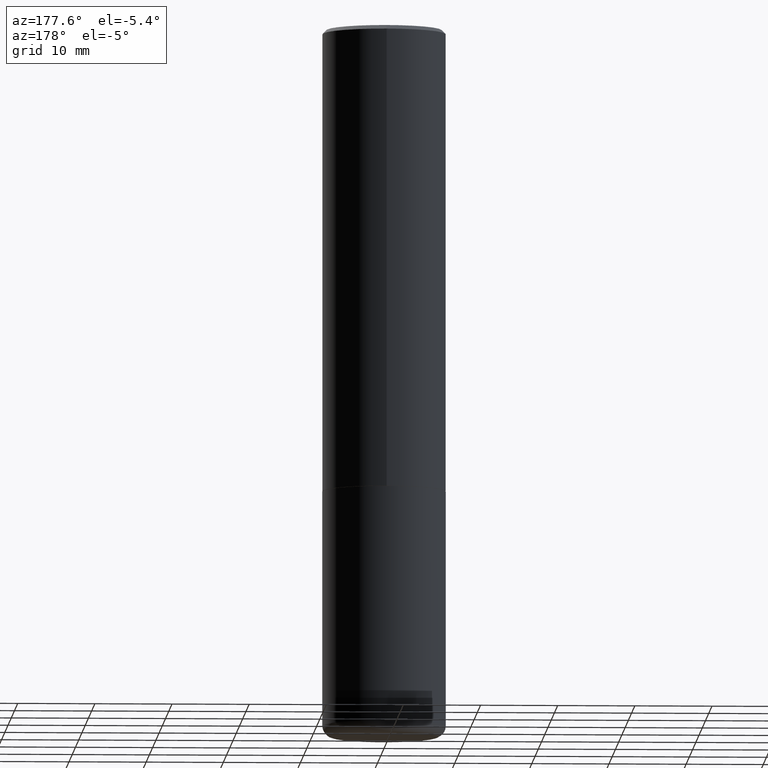
[diagram: clean part render]
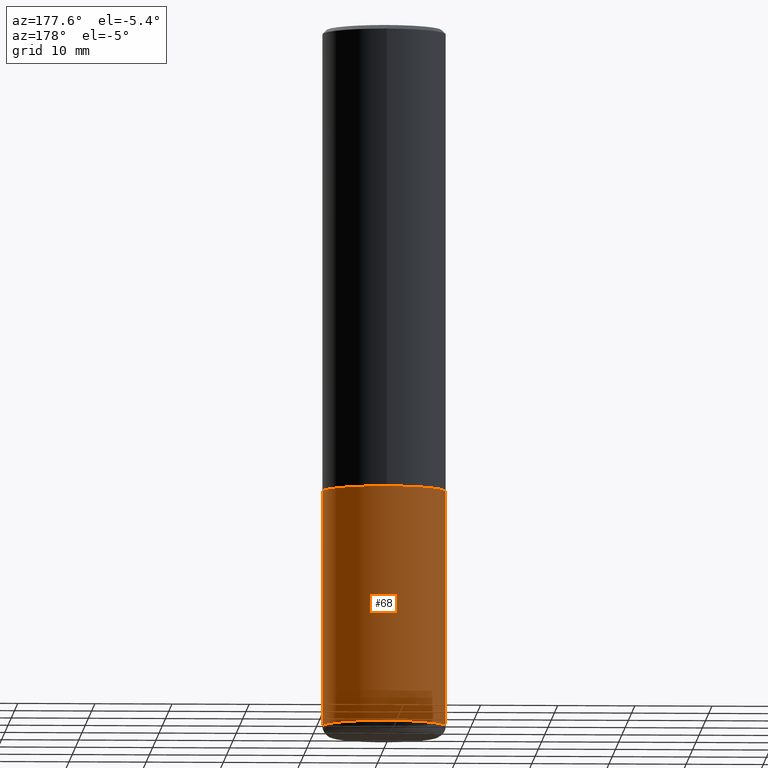
[diagram: same view with one face highlighted and labeled with its STEP entity id]
A machine part, auxiliary view. The second image highlights one B-rep face of the part: STEP entity #68.
In plain terms, the highlighted cylindrical surface (partial cylindrical patch) has radius 7.9997 mm, axis along (-0, 0, 1).
Its self-contained STEP definition (entity closure, byte-faithful):
#8 = CARTESIAN_POINT ( 'NONE',  ( -0.3149500000000000077, 2.237854346276435590E-15, -1.549218606675782676E-29 ) ) ;
#16 = CYLINDRICAL_SURFACE ( 'NONE', #258, 0.3149500000000000077 ) ;
#26 = DIRECTION ( 'NONE',  ( -2.445468806185136877E-29, 3.491481338843145188E-15, 1.000000000000000000 ) ) ;
#32 = DIRECTION ( 'NONE',  ( 1.000000000000000000, -6.982962677686266711E-15, 0.000000000000000000 ) ) ;
#43 = LINE ( 'NONE', #8, #119 ) ;
#60 = VECTOR ( 'NONE', #26, 39.37007874015748143 ) ;
#61 = ORIENTED_EDGE ( 'NONE', *, *, #147, .T. ) ;
#62 = DIRECTION ( 'NONE',  ( -2.445468806185136597E-29, 3.491481338843145583E-15, 1.000000000000000000 ) ) ;
#68 = ADVANCED_FACE ( 'NONE', ( #233 ), #16, .T. ) ;
#97 = EDGE_LOOP ( 'NONE', ( #61, #345, #199, #168 ) ) ;
#111 = CARTESIAN_POINT ( 'NONE',  ( 0.000000000000000000, 0.000000000000000000, 0.000000000000000000 ) ) ;
#112 = CIRCLE ( 'NONE', #141, 0.3149500000000000632 ) ;
#116 = CARTESIAN_POINT ( 'NONE',  ( -0.3149500000000000077, -1.020194451588780718E-14, -3.562899999999999956 ) ) ;
#118 = CARTESIAN_POINT ( 'NONE',  ( 8.712960809557023143E-29, -1.243979886216424317E-14, -3.562899999999999956 ) ) ;
#119 = VECTOR ( 'NONE', #178, 39.37007874015748143 ) ;
#121 = CIRCLE ( 'NONE', #337, 0.3149500000000000077 ) ;
#122 = VERTEX_POINT ( 'NONE', #116 ) ;
#126 = CARTESIAN_POINT ( 'NONE',  ( 5.776686413970529753E-29, -8.247577218615278049E-15, -2.362199999999999633 ) ) ;
#141 = AXIS2_PLACEMENT_3D ( 'NONE', #118, #153, #334 ) ;
#144 = CARTESIAN_POINT ( 'NONE',  ( 0.3149500000000000077, -1.463908295750153462E-14, -3.562899999999999956 ) ) ;
#147 = EDGE_CURVE ( 'NONE', #192, #122, #112, .T. ) ;
#149 = EDGE_CURVE ( 'NONE', #122, #213, #43, .T. ) ;
#153 = DIRECTION ( 'NONE',  ( -2.445468806185136597E-29, 3.491481338843145583E-15, 1.000000000000000000 ) ) ;
#168 = ORIENTED_EDGE ( 'NONE', *, *, #411, .F. ) ;
#178 = DIRECTION ( 'NONE',  ( -2.445468806185136877E-29, 3.491481338843145188E-15, 1.000000000000000000 ) ) ;
#192 = VERTEX_POINT ( 'NONE', #144 ) ;
#199 = ORIENTED_EDGE ( 'NONE', *, *, #321, .F. ) ;
#213 = VERTEX_POINT ( 'NONE', #232 ) ;
#232 = CARTESIAN_POINT ( 'NONE',  ( -0.3149500000000000077, -8.105833694113324624E-15, -2.362199999999999633 ) ) ;
#233 = FACE_OUTER_BOUND ( 'NONE', #97, .T. ) ;
#237 = DIRECTION ( 'NONE',  ( 1.000000000000000000, -6.982962677686266711E-15, 4.876176775795936353E-29 ) ) ;
#258 = AXIS2_PLACEMENT_3D ( 'NONE', #111, #366, #237 ) ;
#286 = CARTESIAN_POINT ( 'NONE',  ( 0.3149500000000000077, -2.199284095337289871E-15, 1.535751875536930130E-29 ) ) ;
#319 = CARTESIAN_POINT ( 'NONE',  ( 0.3149500000000000077, -1.044686131395256792E-14, -2.362199999999999633 ) ) ;
#321 = EDGE_CURVE ( 'NONE', #415, #213, #121, .T. ) ;
#327 = LINE ( 'NONE', #286, #60 ) ;
#334 = DIRECTION ( 'NONE',  ( 1.000000000000000000, -6.982962677686268288E-15, 0.000000000000000000 ) ) ;
#337 = AXIS2_PLACEMENT_3D ( 'NONE', #126, #62, #32 ) ;
#345 = ORIENTED_EDGE ( 'NONE', *, *, #149, .T. ) ;
#366 = DIRECTION ( 'NONE',  ( -2.445468806185136597E-29, 3.491481338843145583E-15, 1.000000000000000000 ) ) ;
#411 = EDGE_CURVE ( 'NONE', #192, #415, #327, .T. ) ;
#415 = VERTEX_POINT ( 'NONE', #319 ) ;